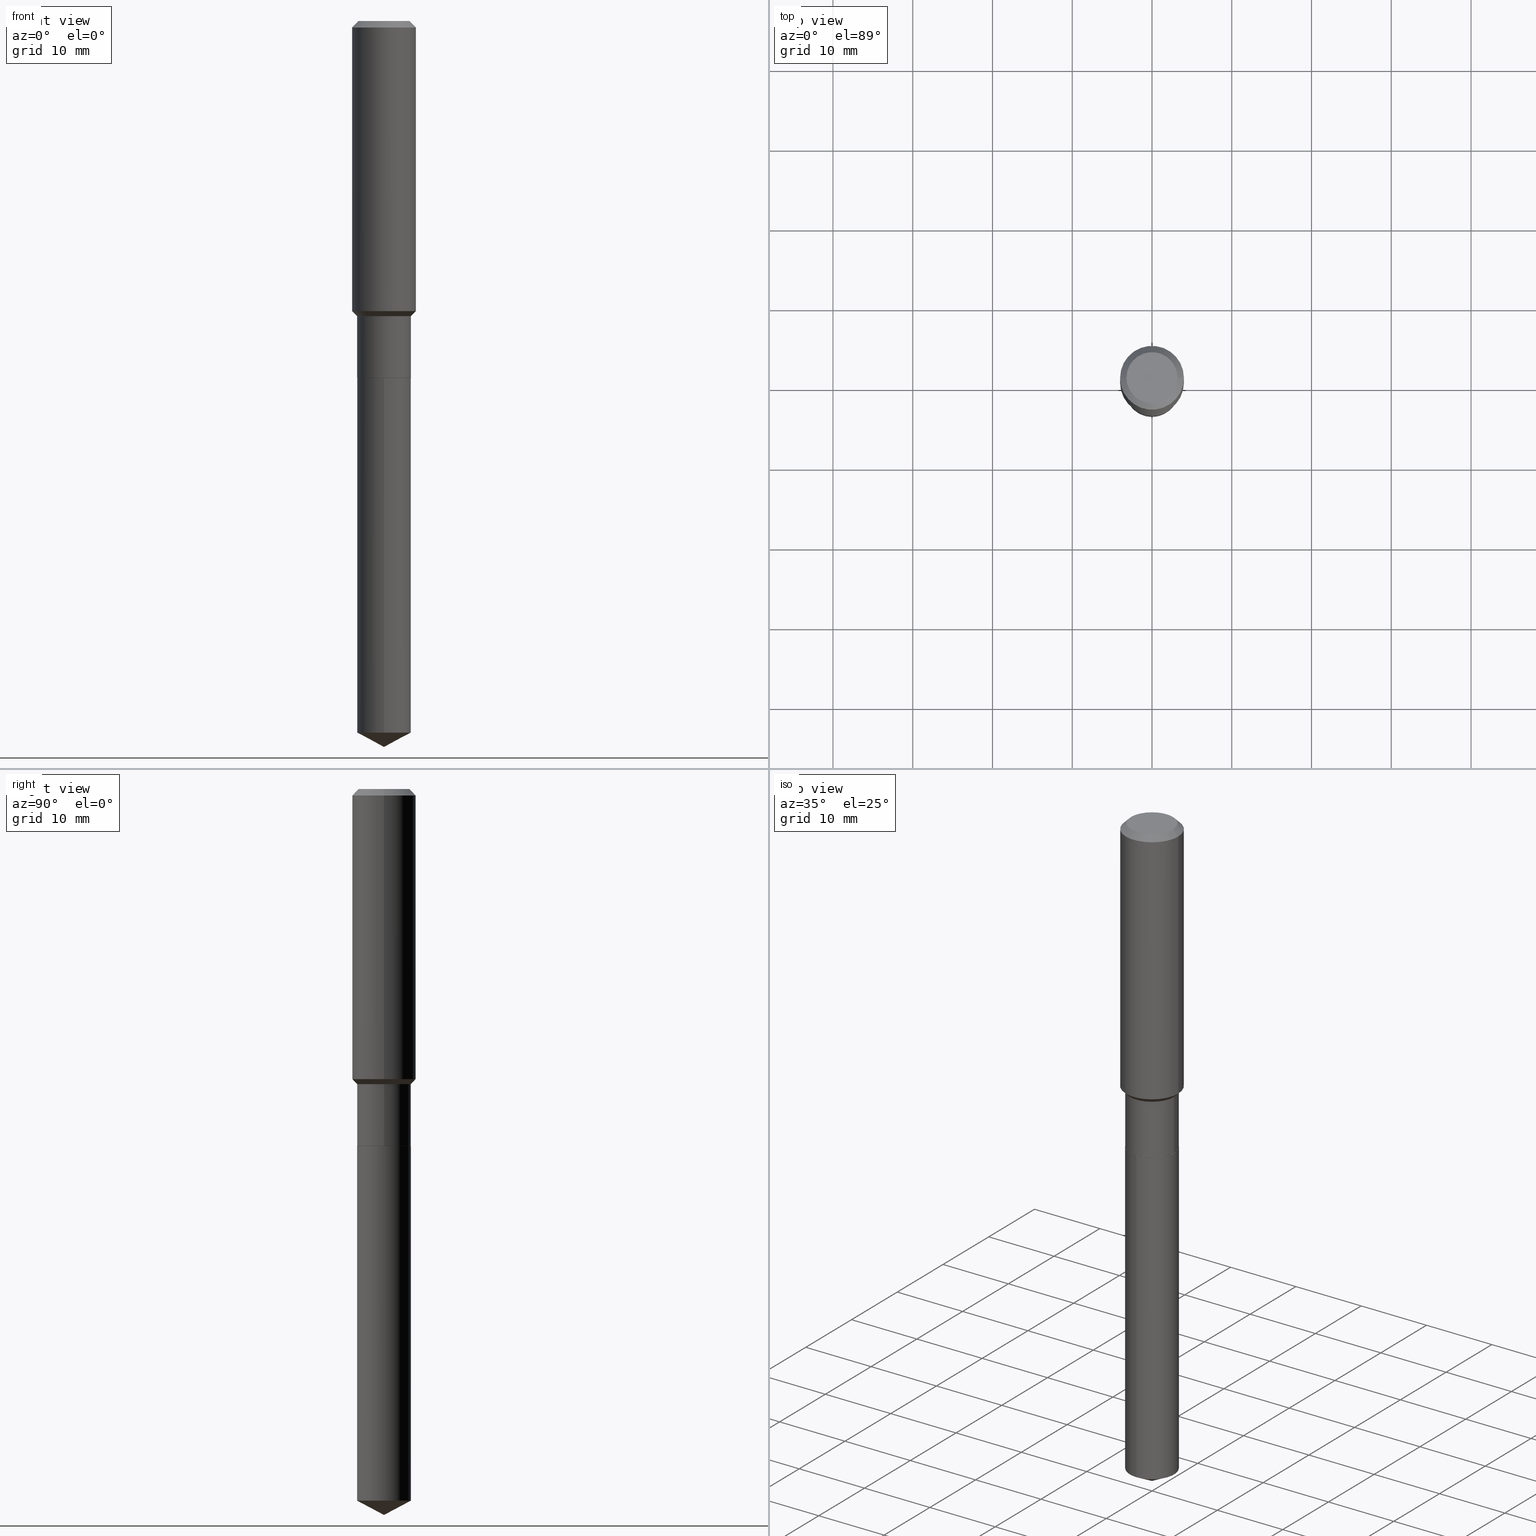
[diagram: canonical four-view strip — front | top / right | iso, engineering-drawing reading convention]
A machine part, canonical four-view strip (front | top / right | iso — engineering-drawing reading convention). The complete STEP part file that produces these views, byte-faithful:
ISO-10303-21;
HEADER;
FILE_DESCRIPTION (( 'STEP AP203' ),
    '1' );
FILE_NAME ('54812.STEP',
    '2024-04-24T15:52:31',
    ( '' ),
    ( '' ),
    'SwSTEP 2.0',
    'SolidWorks 2023',
    '' );
FILE_SCHEMA (( 'CONFIG_CONTROL_DESIGN' ));
ENDSEC;

DATA;
#1 = ORIENTED_EDGE ( 'NONE', *, *, #73, .F. ) ;
#2 = PRODUCT_DEFINITION_SHAPE ( 'NONE', 'NONE',  #238 ) ;
#3 = EDGE_LOOP ( 'NONE', ( #482, #392, #186 ) ) ;
#4 = ORIENTED_EDGE ( 'NONE', *, *, #234, .F. ) ;
#5 = CC_DESIGN_APPROVAL ( #214, ( #238 ) ) ;
#6 = CONICAL_SURFACE ( 'NONE', #197, 0.1327999999999999736, 0.7853981633974492782 ) ;
#7 = CARTESIAN_POINT ( 'NONE',  ( 3.500688596054023043E-29, -4.998055536553962721E-15, -1.431499999999999995 ) ) ;
#8 = CARTESIAN_POINT ( 'NONE',  ( 4.307937848975736097E-29, -6.150593526506084343E-15, -1.761599999999999833 ) ) ;
#9 = EDGE_CURVE ( 'NONE', #123, #133, #199, .T. ) ;
#10 = VECTOR ( 'NONE', #205, 39.37007874015748143 ) ;
#11 = FACE_OUTER_BOUND ( 'NONE', #383, .T. ) ;
#12 = ADVANCED_FACE ( 'NONE', ( #461 ), #120, .F. ) ;
#13 = DIRECTION ( 'NONE',  ( -2.445468806185136597E-29, 3.491481338843145583E-15, 1.000000000000000000 ) ) ;
#14 = AXIS2_PLACEMENT_3D ( 'NONE', #408, #33, #215 ) ;
#15 = DIRECTION ( 'NONE',  ( 1.000000000000000000, -6.982962677686265133E-15, 0.000000000000000000 ) ) ;
#16 = DIRECTION ( 'NONE',  ( 1.000000000000000000, -6.982962677686267499E-15, 0.000000000000000000 ) ) ;
#17 = DIRECTION ( 'NONE',  ( -2.445307825869915772E-29, 3.491711871816972429E-15, 1.000000000000000000 ) ) ;
#18 = ADVANCED_FACE ( 'NONE', ( #11 ), #63, .T. ) ;
#19 = DIRECTION ( 'NONE',  ( 1.000000000000000000, -6.982962677686266711E-15, 4.876176775795936353E-29 ) ) ;
#20 = ORIENTED_EDGE ( 'NONE', *, *, #251, .T. ) ;
#21 = LINE ( 'NONE', #125, #85 ) ;
#22 = AXIS2_PLACEMENT_3D ( 'NONE', #371, #189, #342 ) ;
#23 = ADVANCED_FACE ( 'NONE', ( #83 ), #6, .T. ) ;
#24 = AXIS2_PLACEMENT_3D ( 'NONE', #58, #326, #368 ) ;
#25 = APPROVAL_ROLE ( '' ) ;
#26 = DIRECTION ( 'NONE',  ( -2.445468806185136597E-29, 3.491481338843145583E-15, 1.000000000000000000 ) ) ;
#27 = DIRECTION ( 'NONE',  ( -2.445468806185136597E-29, 3.491481338843145583E-15, 1.000000000000000000 ) ) ;
#28 = ORIENTED_EDGE ( 'NONE', *, *, #111, .F. ) ;
#29 = PERSON_AND_ORGANIZATION_ROLE ( 'design_supplier' ) ;
#30 = LINE ( 'NONE', #341, #382 ) ;
#31 = VERTEX_POINT ( 'NONE', #345 ) ;
#32 = AXIS2_PLACEMENT_3D ( 'NONE', #69, #267, #104 ) ;
#33 = DIRECTION ( 'NONE',  ( 0.000000000000000000, 0.000000000000000000, 1.000000000000000000 ) ) ;
#34 = DIRECTION ( 'NONE',  ( 0.7071067811865451302, -7.319954787623248157E-15, -0.7071067811865499042 ) ) ;
#35 = ORIENTED_EDGE ( 'NONE', *, *, #316, .F. ) ;
#36 = EDGE_CURVE ( 'NONE', #333, #321, #40, .T. ) ;
#37 = CARTESIAN_POINT ( 'NONE',  ( -0.1328000000000000014, -4.672970702640613031E-15, -1.761099999999999888 ) ) ;
#38 = ORIENTED_EDGE ( 'NONE', *, *, #273, .T. ) ;
#39 = VECTOR ( 'NONE', #490, 39.37007874015748143 ) ;
#40 = CIRCLE ( 'NONE', #343, 0.1328000000000000014 ) ;
#41 = ORIENTED_EDGE ( 'NONE', *, *, #55, .F. ) ;
#42 = ADVANCED_FACE ( 'NONE', ( #44 ), #155, .T. ) ;
#43 = FACE_OUTER_BOUND ( 'NONE', #101, .T. ) ;
#44 = FACE_OUTER_BOUND ( 'NONE', #384, .T. ) ;
#45 = DIRECTION ( 'NONE',  ( 1.000000000000000000, -6.982962677686267499E-15, 0.000000000000000000 ) ) ;
#46 = AXIS2_PLACEMENT_3D ( 'NONE', #275, #277, #45 ) ;
#47 = CLOSED_SHELL ( 'NONE', ( #428, #328, #330, #23, #42, #131, #226, #396, #162, #266, #12, #432 ) ) ;
#48 = CARTESIAN_POINT ( 'NONE',  ( 4.306715114572644417E-29, -6.148847785836663628E-15, -1.761099999999999888 ) ) ;
#49 = AXIS2_PLACEMENT_3D ( 'NONE', #483, #258, #409 ) ;
#50 = CC_DESIGN_PERSON_AND_ORGANIZATION_ASSIGNMENT ( #441, #454, ( #475 ) ) ;
#51 = DIRECTION ( 'NONE',  ( -6.982962677686265133E-15, -1.000000000000000000, 4.114228906120878260E-15 ) ) ;
#52 = DIRECTION ( 'NONE',  ( -2.445307825869915772E-29, 3.491711871816972429E-15, 1.000000000000000000 ) ) ;
#53 = DIRECTION ( 'NONE',  ( 1.000000000000000000, -6.982962677686265133E-15, 0.000000000000000000 ) ) ;
#54 = CIRCLE ( 'NONE', #336, 0.1323000000000000009 ) ;
#55 = EDGE_CURVE ( 'NONE', #67, #123, #194, .T. ) ;
#56 = ORIENTED_EDGE ( 'NONE', *, *, #36, .F. ) ;
#57 = CONICAL_SURFACE ( 'NONE', #24, 0.1575000000000000011, 0.7853981633974449483 ) ;
#58 = CARTESIAN_POINT ( 'NONE',  ( 7.703226739483228723E-31, -1.099816621735597661E-16, -0.03150000000000019451 ) ) ;
#59 = CARTESIAN_POINT ( 'NONE',  ( -0.1575000000000000011, 9.898349595620272334E-16, -0.03150000000000019451 ) ) ;
#60 = ORIENTED_EDGE ( 'NONE', *, *, #124, .F. ) ;
#61 = CARTESIAN_POINT ( 'NONE',  ( -9.439721640706201686E-47, 1.347742071746726764E-32, 3.860086710912459732E-18 ) ) ;
#62 = CC_DESIGN_APPROVAL ( #86, ( #475 ) ) ;
#63 = CONICAL_SURFACE ( 'NONE', #157, 74.04434902938363905, 1.082104136236487157 ) ;
#64 = CC_DESIGN_DATE_AND_TIME_ASSIGNMENT ( #405, #485, ( #238 ) ) ;
#65 = COORDINATED_UNIVERSAL_TIME_OFFSET ( 5, 0, .BEHIND. ) ;
#66 = LINE ( 'NONE', #170, #314 ) ;
#67 = VERTEX_POINT ( 'NONE', #462 ) ;
#68 = APPROVAL_DATE_TIME ( #257, #489 ) ;
#69 = CARTESIAN_POINT ( 'NONE',  ( 7.703226739483228723E-31, -1.099816621735597661E-16, -0.03150000000000019451 ) ) ;
#70 = EDGE_LOOP ( 'NONE', ( #259, #416, #420, #407 ) ) ;
#71 = CALENDAR_DATE ( 2024, 24, 4 ) ;
#72 = DIRECTION ( 'NONE',  ( -2.445468806185136597E-29, 3.491481338843145583E-15, 1.000000000000000000 ) ) ;
#73 = EDGE_CURVE ( 'NONE', #231, #123, #175, .T. ) ;
#74 = CIRCLE ( 'NONE', #156, 0.1328000000000000014 ) ;
#75 = SHAPE_DEFINITION_REPRESENTATION ( #2, #134 ) ;
#76 = CARTESIAN_POINT ( 'NONE',  ( 0.1328000000000000014, -7.076185229433399456E-15, -1.761099999999999888 ) ) ;
#77 = VERTEX_POINT ( 'NONE', #464 ) ;
#78 = DIRECTION ( 'NONE',  ( 1.000000000000000000, -6.982962677686265922E-15, 0.000000000000000000 ) ) ;
#79 = ORIENTED_EDGE ( 'NONE', *, *, #310, .F. ) ;
#80 = AXIS2_PLACEMENT_3D ( 'NONE', #359, #132, #287 ) ;
#81 =( GEOMETRIC_REPRESENTATION_CONTEXT ( 3 ) GLOBAL_UNCERTAINTY_ASSIGNED_CONTEXT ( ( #435 ) ) GLOBAL_UNIT_ASSIGNED_CONTEXT ( ( #468, #161, #164 ) ) REPRESENTATION_CONTEXT ( 'NONE', 'WORKASPACE' ) );
#82 = EDGE_LOOP ( 'NONE', ( #318, #4 ) ) ;
#83 = FACE_OUTER_BOUND ( 'NONE', #309, .T. ) ;
#84 = DIRECTION ( 'NONE',  ( 6.982962677686265922E-15, 1.000000000000000000, -3.491711871816972429E-15 ) ) ;
#85 = VECTOR ( 'NONE', #358, 39.37007874015748854 ) ;
#86 = APPROVAL ( #144, 'UNSPECIFIED' ) ;
#87 = ORIENTED_EDGE ( 'NONE', *, *, #229, .F. ) ;
#88 = CYLINDRICAL_SURFACE ( 'NONE', #299, 0.1328000000000000014 ) ;
#89 = CARTESIAN_POINT ( 'NONE',  ( -9.273374435966502365E-16, -0.1328000000000122416, -3.512388987475355773 ) ) ;
#90 = DIRECTION ( 'NONE',  ( -2.438088387897960049E-29, 3.491481338843145188E-15, 1.000000000000000000 ) ) ;
#91 = ADVANCED_FACE ( 'NONE', ( #470 ), #320, .T. ) ;
#92 = FACE_OUTER_BOUND ( 'NONE', #477, .T. ) ;
#93 = CARTESIAN_POINT ( 'NONE',  ( -9.273374435966930322E-16, -0.1328000000000061354, -1.761599999999999389 ) ) ;
#94 = DESIGN_CONTEXT ( 'detailed design', #135, 'design' ) ;
#95 = DIRECTION ( 'NONE',  ( -2.445468806185136597E-29, 3.491481338843145583E-15, 1.000000000000000000 ) ) ;
#96 = EDGE_CURVE ( 'NONE', #77, #339, #315, .T. ) ;
#97 = CARTESIAN_POINT ( 'NONE',  ( 0.000000000000000000, 0.000000000000000000, 0.000000000000000000 ) ) ;
#98 = EDGE_LOOP ( 'NONE', ( #192, #268, #335, #87 ) ) ;
#99 = COORDINATED_UNIVERSAL_TIME_OFFSET ( 5, 0, .BEHIND. ) ;
#100 = CARTESIAN_POINT ( 'NONE',  ( 9.436007530894992397E-16, 0.1327999999999938674, -1.761600000000000499 ) ) ;
#101 = EDGE_LOOP ( 'NONE', ( #130, #369, #142, #488 ) ) ;
#102 = ADVANCED_FACE ( 'NONE', ( #430 ), #88, .T. ) ;
#103 = PERSON_AND_ORGANIZATION ( #270, #281 ) ;
#104 = DIRECTION ( 'NONE',  ( -1.000000000000000000, 6.982962677686265922E-15, 0.000000000000000000 ) ) ;
#105 = VERTEX_POINT ( 'NONE', #89 ) ;
#106 = DATE_TIME_ROLE ( 'classification_date' ) ;
#107 = DIRECTION ( 'NONE',  ( 1.000000000000000000, -6.982962677686267499E-15, 4.876176775795936353E-29 ) ) ;
#108 = ORIENTED_EDGE ( 'NONE', *, *, #316, .T. ) ;
#109 = APPROVAL_ROLE ( '' ) ;
#110 = DIRECTION ( 'NONE',  ( -6.982962677686265133E-15, -1.000000000000000000, 4.114228906120878260E-15 ) ) ;
#111 = EDGE_CURVE ( 'NONE', #376, #67, #357, .T. ) ;
#112 = EDGE_CURVE ( 'NONE', #269, #188, #121, .T. ) ;
#113 = CIRCLE ( 'NONE', #183, 0.1328000000000000014 ) ;
#114 = ORIENTED_EDGE ( 'NONE', *, *, #385, .F. ) ;
#115 = CARTESIAN_POINT ( 'NONE',  ( 0.000000000000000000, 0.000000000000000000, 0.000000000000000000 ) ) ;
#116 = CC_DESIGN_PERSON_AND_ORGANIZATION_ASSIGNMENT ( #479, #402, ( #238 ) ) ;
#117 = DIRECTION ( 'NONE',  ( -2.445468806185136877E-29, 3.491481338843145188E-15, 1.000000000000000000 ) ) ;
#118 = AXIS2_PLACEMENT_3D ( 'NONE', #254, #26, #437 ) ;
#119 = DIRECTION ( 'NONE',  ( 6.273719981627766865E-15, 0.8829475928589298750, 0.4694715627858851992 ) ) ;
#120 = PLANE ( 'NONE',  #167 ) ;
#121 = CIRCLE ( 'NONE', #422, 0.1260000000000000009 ) ;
#122 = FACE_OUTER_BOUND ( 'NONE', #210, .T. ) ;
#123 = VERTEX_POINT ( 'NONE', #245 ) ;
#124 = EDGE_CURVE ( 'NONE', #77, #105, #66, .T. ) ;
#125 = CARTESIAN_POINT ( 'NONE',  ( 0.1323000000000000009, -7.074439488763977163E-15, -1.761599999999999611 ) ) ;
#126 = EDGE_LOOP ( 'NONE', ( #230, #190, #154, #312 ) ) ;
#127 = APPROVAL_PERSON_ORGANIZATION ( #103, #86, #337 ) ;
#128 = CARTESIAN_POINT ( 'NONE',  ( -0.1323000000000000009, -5.210545487095471198E-15, -1.761599999999999611 ) ) ;
#129 = CLOSED_SHELL ( 'NONE', ( #191, #18, #91, #102, #444 ) ) ;
#130 = ORIENTED_EDGE ( 'NONE', *, *, #436, .T. ) ;
#131 = ADVANCED_FACE ( 'NONE', ( #250 ), #297, .T. ) ;
#132 = DIRECTION ( 'NONE',  ( -2.445307825869915772E-29, 3.491711871816972429E-15, 1.000000000000000000 ) ) ;
#133 = VERTEX_POINT ( 'NONE', #209 ) ;
#134 = ADVANCED_BREP_SHAPE_REPRESENTATION ( '54812', ( #249, #243, #14 ), #81 ) ;
#135 = APPLICATION_CONTEXT ( 'configuration controlled 3d designs of mechanical parts and assemblies' ) ;
#136 = PERSON_AND_ORGANIZATION ( #270, #281 ) ;
#137 = LINE ( 'NONE', #59, #324 ) ;
#138 = VERTEX_POINT ( 'NONE', #93 ) ;
#139 = DATE_AND_TIME ( #71, #235 ) ;
#140 = LOCAL_TIME ( 11, 52, 31.00000000000000000, #253 ) ;
#141 = DIRECTION ( 'NONE',  ( -2.445468806185136597E-29, 3.491481338843145583E-15, 1.000000000000000000 ) ) ;
#142 = ORIENTED_EDGE ( 'NONE', *, *, #293, .F. ) ;
#143 = VECTOR ( 'NONE', #117, 39.37007874015748143 ) ;
#144 = APPROVAL_STATUS ( 'not_yet_approved' ) ;
#145 = DIRECTION ( 'NONE',  ( 0.7071067811865482389, -2.468850131082264555E-15, 0.7071067811865467956 ) ) ;
#146 = PERSON_AND_ORGANIZATION ( #270, #281 ) ;
#147 = CARTESIAN_POINT ( 'NONE',  ( 0.000000000000000000, 0.000000000000000000, 0.000000000000000000 ) ) ;
#148 = ORIENTED_EDGE ( 'NONE', *, *, #206, .T. ) ;
#149 = COORDINATED_UNIVERSAL_TIME_OFFSET ( 5, 0, .BEHIND. ) ;
#150 = LINE ( 'NONE', #487, #152 ) ;
#151 = ORIENTED_EDGE ( 'NONE', *, *, #360, .F. ) ;
#152 = VECTOR ( 'NONE', #224, 39.37007874015748143 ) ;
#153 = EDGE_CURVE ( 'NONE', #188, #269, #177, .T. ) ;
#154 = ORIENTED_EDGE ( 'NONE', *, *, #185, .T. ) ;
#155 = CYLINDRICAL_SURFACE ( 'NONE', #391, 0.1327999999999999736 ) ;
#156 = AXIS2_PLACEMENT_3D ( 'NONE', #486, #451, #110 ) ;
#157 = AXIS2_PLACEMENT_3D ( 'NONE', #423, #355, #317 ) ;
#158 = CARTESIAN_POINT ( 'NONE',  ( -8.751014012540668707E-28, 1.249585738015433428E-13, 35.78707874015748303 ) ) ;
#159 = DIRECTION ( 'NONE',  ( -6.982962677686265133E-15, -1.000000000000000000, 4.114228906120878260E-15 ) ) ;
#160 = CARTESIAN_POINT ( 'NONE',  ( 6.847996289675660133E-29, -2.513085268275572980E-15, -1.761599999999999611 ) ) ;
#161 =( NAMED_UNIT ( * ) PLANE_ANGLE_UNIT ( ) SI_UNIT ( $, .RADIAN. ) );
#162 = ADVANCED_FACE ( 'NONE', ( #169 ), #57, .T. ) ;
#163 = DIRECTION ( 'NONE',  ( -2.445468806185136597E-29, 3.491481338843145583E-15, 1.000000000000000000 ) ) ;
#164 =( NAMED_UNIT ( * ) SI_UNIT ( $, .STERADIAN. ) SOLID_ANGLE_UNIT ( ) );
#165 = AXIS2_PLACEMENT_3D ( 'NONE', #115, #195, #202 ) ;
#166 = AXIS2_PLACEMENT_3D ( 'NONE', #434, #17, #289 ) ;
#167 = AXIS2_PLACEMENT_3D ( 'NONE', #160, #90, #201 ) ;
#168 = DIRECTION ( 'NONE',  ( 1.000000000000000000, -6.982962677686267499E-15, 0.000000000000000000 ) ) ;
#169 = FACE_OUTER_BOUND ( 'NONE', #70, .T. ) ;
#170 = CARTESIAN_POINT ( 'NONE',  ( 8.761537940091907830E-29, -1.251080363672021200E-14, -3.583000000000000185 ) ) ;
#171 = ORIENTED_EDGE ( 'NONE', *, *, #234, .T. ) ;
#172 = EDGE_CURVE ( 'NONE', #272, #333, #246, .T. ) ;
#173 = AXIS2_PLACEMENT_3D ( 'NONE', #471, #322, #237 ) ;
#174 = CARTESIAN_POINT ( 'NONE',  ( -0.1260000000000000009, 9.348441284752484904E-16, 3.860086710906114178E-18 ) ) ;
#175 = CIRCLE ( 'NONE', #458, 0.1575000000000001676 ) ;
#176 = ORIENTED_EDGE ( 'NONE', *, *, #481, .T. ) ;
#177 = CIRCLE ( 'NONE', #448, 0.1260000000000000009 ) ;
#178 = CARTESIAN_POINT ( 'NONE',  ( 3.561091675566796113E-29, -5.084295125623389731E-15, -1.456200000000000161 ) ) ;
#179 = ORIENTED_EDGE ( 'NONE', *, *, #310, .T. ) ;
#180 = FACE_OUTER_BOUND ( 'NONE', #372, .T. ) ;
#181 = ORIENTED_EDGE ( 'NONE', *, *, #340, .F. ) ;
#182 = DATE_AND_TIME ( #223, #264 ) ;
#183 = AXIS2_PLACEMENT_3D ( 'NONE', #8, #52, #159 ) ;
#184 = LINE ( 'NONE', #304, #39 ) ;
#185 = EDGE_CURVE ( 'NONE', #321, #376, #474, .T. ) ;
#186 = ORIENTED_EDGE ( 'NONE', *, *, #251, .F. ) ;
#187 = DIRECTION ( 'NONE',  ( 1.000000000000000000, -6.982962677686263555E-15, 0.000000000000000000 ) ) ;
#188 = VERTEX_POINT ( 'NONE', #174 ) ;
#189 = DIRECTION ( 'NONE',  ( -2.445468806185136597E-29, 3.491481338843145583E-15, 1.000000000000000000 ) ) ;
#190 = ORIENTED_EDGE ( 'NONE', *, *, #36, .T. ) ;
#191 = ADVANCED_FACE ( 'NONE', ( #329 ), #204, .T. ) ;
#192 = ORIENTED_EDGE ( 'NONE', *, *, #112, .F. ) ;
#193 = CARTESIAN_POINT ( 'NONE',  ( 4.307937848975735537E-29, -6.150593526506083554E-15, -1.761599999999999611 ) ) ;
#194 = LINE ( 'NONE', #233, #221 ) ;
#195 = DIRECTION ( 'NONE',  ( -2.445468806185136597E-29, 3.491481338843145583E-15, 1.000000000000000000 ) ) ;
#196 = VECTOR ( 'NONE', #34, 39.37007874015748143 ) ;
#197 = AXIS2_PLACEMENT_3D ( 'NONE', #389, #13, #15 ) ;
#198 = DIRECTION ( 'NONE',  ( -2.445468806185136597E-29, 3.491481338843145583E-15, 1.000000000000000000 ) ) ;
#199 = LINE ( 'NONE', #354, #143 ) ;
#200 = EDGE_CURVE ( 'NONE', #67, #376, #394, .T. ) ;
#201 = DIRECTION ( 'NONE',  ( 1.000000000000000000, -6.982962677686265922E-15, 4.876176775795935793E-29 ) ) ;
#202 = DIRECTION ( 'NONE',  ( 1.000000000000000000, -6.982962677686267499E-15, 4.876176775795936353E-29 ) ) ;
#203 = AXIS2_PLACEMENT_3D ( 'NONE', #411, #417, #78 ) ;
#204 = CYLINDRICAL_SURFACE ( 'NONE', #80, 0.1328000000000000014 ) ;
#205 = DIRECTION ( 'NONE',  ( -2.445468806185136877E-29, 3.491481338843145188E-15, 1.000000000000000000 ) ) ;
#206 = EDGE_CURVE ( 'NONE', #397, #321, #21, .T. ) ;
#207 = CARTESIAN_POINT ( 'NONE',  ( 4.307937848975735537E-29, -6.150593526506083554E-15, -1.761599999999999611 ) ) ;
#208 = CC_DESIGN_SECURITY_CLASSIFICATION ( #475, ( #242 ) ) ;
#209 = CARTESIAN_POINT ( 'NONE',  ( -0.1575000000000000011, -1.434913790541602697E-15, -0.03150000000000019451 ) ) ;
#210 = EDGE_LOOP ( 'NONE', ( #425, #404 ) ) ;
#211 = COORDINATED_UNIVERSAL_TIME_OFFSET ( 5, 0, .BEHIND. ) ;
#212 = CARTESIAN_POINT ( 'NONE',  ( -0.1323000000000000009, -5.207896259921361575E-15, -1.761599999999999611 ) ) ;
#213 = EDGE_LOOP ( 'NONE', ( #35, #20, #379, #438 ) ) ;
#214 = APPROVAL ( #331, 'UNSPECIFIED' ) ;
#215 = DIRECTION ( 'NONE',  ( 1.000000000000000000, 0.000000000000000000, 0.000000000000000000 ) ) ;
#216 = CYLINDRICAL_SURFACE ( 'NONE', #419, 0.1575000000000000844 ) ;
#217 = ORIENTED_EDGE ( 'NONE', *, *, #153, .T. ) ;
#218 = DATE_AND_TIME ( #300, #413 ) ;
#219 = CONICAL_SURFACE ( 'NONE', #173, 0.1323000000000000009, 0.7853981633978239785 ) ;
#220 = FACE_OUTER_BOUND ( 'NONE', #460, .T. ) ;
#221 = VECTOR ( 'NONE', #427, 39.37007874015748143 ) ;
#222 = VECTOR ( 'NONE', #472, 39.37007874015748854 ) ;
#223 = CALENDAR_DATE ( 2024, 24, 4 ) ;
#224 = DIRECTION ( 'NONE',  ( -2.445307825869916052E-29, 3.491711871816972429E-15, 1.000000000000000000 ) ) ;
#225 = ORIENTED_EDGE ( 'NONE', *, *, #9, .F. ) ;
#226 = ADVANCED_FACE ( 'NONE', ( #180 ), #325, .T. ) ;
#227 = FACE_OUTER_BOUND ( 'NONE', #290, .T. ) ;
#228 = ORIENTED_EDGE ( 'NONE', *, *, #55, .T. ) ;
#229 = EDGE_CURVE ( 'NONE', #188, #133, #137, .T. ) ;
#230 = ORIENTED_EDGE ( 'NONE', *, *, #481, .F. ) ;
#231 = VERTEX_POINT ( 'NONE', #334 ) ;
#232 = LINE ( 'NONE', #387, #445 ) ;
#233 = CARTESIAN_POINT ( 'NONE',  ( -0.1327999999999999736, -4.140694372533976477E-15, -1.456200000000000161 ) ) ;
#234 = EDGE_CURVE ( 'NONE', #272, #397, #433, .T. ) ;
#235 = LOCAL_TIME ( 11, 52, 31.00000000000000000, #99 ) ;
#236 = DIRECTION ( 'NONE',  ( -2.445307825869915772E-29, 3.491711871816972429E-15, 1.000000000000000000 ) ) ;
#237 = DIRECTION ( 'NONE',  ( 1.000000000000000000, -6.982962677686267499E-15, 0.000000000000000000 ) ) ;
#238 = PRODUCT_DEFINITION ( 'UNKNOWN', '', #242, #94 ) ;
#239 = CARTESIAN_POINT ( 'NONE',  ( 3.561091675566796113E-29, -5.084295125623389731E-15, -1.456200000000000161 ) ) ;
#240 = CYLINDRICAL_SURFACE ( 'NONE', #165, 0.1575000000000000844 ) ;
#241 = ORIENTED_EDGE ( 'NONE', *, *, #111, .T. ) ;
#242 = PRODUCT_DEFINITION_FORMATION_WITH_SPECIFIED_SOURCE ( 'ANY', '', #453, .NOT_KNOWN. ) ;
#243 = MANIFOLD_SOLID_BREP ( 'Body-Move/Copy2[2]', #47 ) ;
#244 = CC_DESIGN_PERSON_AND_ORGANIZATION_ASSIGNMENT ( #410, #365, ( #453 ) ) ;
#245 = CARTESIAN_POINT ( 'NONE',  ( -0.1575000000000001676, -3.878950727731804329E-15, -1.431499999999999995 ) ) ;
#246 = LINE ( 'NONE', #128, #222 ) ;
#247 = ORIENTED_EDGE ( 'NONE', *, *, #73, .T. ) ;
#248 = APPLICATION_CONTEXT ( 'configuration controlled 3d designs of mechanical parts and assemblies' ) ;
#249 = MANIFOLD_SOLID_BREP ( 'Body-Move/Copy2[1]', #129 ) ;
#250 = FACE_OUTER_BOUND ( 'NONE', #126, .T. ) ;
#251 = EDGE_CURVE ( 'NONE', #339, #105, #476, .T. ) ;
#252 = AXIS2_PLACEMENT_3D ( 'NONE', #424, #346, #84 ) ;
#253 = COORDINATED_UNIVERSAL_TIME_OFFSET ( 5, 0, .BEHIND. ) ;
#254 = CARTESIAN_POINT ( 'NONE',  ( 3.561091675566796113E-29, -5.084295125623389731E-15, -1.456200000000000161 ) ) ;
#255 = VERTEX_POINT ( 'NONE', #100 ) ;
#256 = AXIS2_PLACEMENT_3D ( 'NONE', #440, #447, #406 ) ;
#257 = DATE_AND_TIME ( #303, #347 ) ;
#258 = DIRECTION ( 'NONE',  ( -2.445307825869915772E-29, 3.491711871816972429E-15, 1.000000000000000000 ) ) ;
#259 = ORIENTED_EDGE ( 'NONE', *, *, #278, .F. ) ;
#260 = APPROVAL_DATE_TIME ( #218, #86 ) ;
#261 = CARTESIAN_POINT ( 'NONE',  ( 0.1327999999999999736, -6.011632569220125559E-15, -1.456200000000000161 ) ) ;
#262 = AXIS2_PLACEMENT_3D ( 'NONE', #178, #400, #332 ) ;
#263 = APPLICATION_PROTOCOL_DEFINITION ( 'international standard', 'config_control_design', 1994, #248 ) ;
#264 = LOCAL_TIME ( 11, 52, 31.00000000000000000, #211 ) ;
#265 = DIRECTION ( 'NONE',  ( -2.445468806185136597E-29, 3.491481338843145583E-15, 1.000000000000000000 ) ) ;
#266 = ADVANCED_FACE ( 'NONE', ( #92 ), #361, .F. ) ;
#267 = DIRECTION ( 'NONE',  ( 2.445468806185136597E-29, -3.491481338843145583E-15, -1.000000000000000000 ) ) ;
#268 = ORIENTED_EDGE ( 'NONE', *, *, #278, .T. ) ;
#269 = VERTEX_POINT ( 'NONE', #442 ) ;
#270 = PERSON ( 'UNSPECIFIED', 'UNSPECIFIED', 'UNSPECIFIED', ('UNSPECIFIED'), ('UNSPECIFIED'), ('UNSPECIFIED') ) ;
#271 = CONICAL_SURFACE ( 'NONE', #46, 0.1323000000000000009, 0.7853981633978239785 ) ;
#272 = VERTEX_POINT ( 'NONE', #212 ) ;
#273 = EDGE_CURVE ( 'NONE', #105, #339, #313, .T. ) ;
#274 = CARTESIAN_POINT ( 'NONE',  ( 0.000000000000000000, 0.000000000000000000, 0.000000000000000000 ) ) ;
#275 = CARTESIAN_POINT ( 'NONE',  ( 4.307937848975735537E-29, -6.150593526506083554E-15, -1.761599999999999611 ) ) ;
#276 = CARTESIAN_POINT ( 'NONE',  ( 8.762110079313482618E-29, -1.250999142294682474E-14, -3.583000000000000185 ) ) ;
#277 = DIRECTION ( 'NONE',  ( -2.445468806185136597E-29, 3.491481338843145583E-15, 1.000000000000000000 ) ) ;
#278 = EDGE_CURVE ( 'NONE', #269, #31, #415, .T. ) ;
#279 = DIRECTION ( 'NONE',  ( 1.000000000000000000, -6.982962677686266711E-15, 4.876176775795936353E-29 ) ) ;
#280 = CARTESIAN_POINT ( 'NONE',  ( 0.1323000000000000009, -7.074439488763977163E-15, -1.761599999999999611 ) ) ;
#281 = ORGANIZATION ( 'UNSPECIFIED', 'UNSPECIFIED', '' ) ;
#282 = DIRECTION ( 'NONE',  ( -2.445307825869915772E-29, 3.491711871816972429E-15, 1.000000000000000000 ) ) ;
#283 = CARTESIAN_POINT ( 'NONE',  ( 4.307937848975736097E-29, -6.150593526506084343E-15, -1.761599999999999833 ) ) ;
#284 = LINE ( 'NONE', #465, #311 ) ;
#285 = DIRECTION ( 'NONE',  ( -6.165590087286836818E-15, -0.8829475928589266553, 0.4694715627858914164 ) ) ;
#286 = APPROVAL_PERSON_ORGANIZATION ( #146, #489, #109 ) ;
#287 = DIRECTION ( 'NONE',  ( -6.982962677686265133E-15, -1.000000000000000000, 4.114228906120878260E-15 ) ) ;
#288 = ORIENTED_EDGE ( 'NONE', *, *, #9, .T. ) ;
#289 = DIRECTION ( 'NONE',  ( -6.982962677686265133E-15, -1.000000000000000000, 4.114228906120878260E-15 ) ) ;
#290 = EDGE_LOOP ( 'NONE', ( #225, #367, #412, #151 ) ) ;
#291 = PERSON_AND_ORGANIZATION_ROLE ( 'creator' ) ;
#292 = DIRECTION ( 'NONE',  ( 1.000000000000000000, -6.982962677686267499E-15, 0.000000000000000000 ) ) ;
#293 = EDGE_CURVE ( 'NONE', #321, #333, #327, .T. ) ;
#294 = APPROVAL_PERSON_ORGANIZATION ( #370, #214, #25 ) ;
#295 = CC_DESIGN_APPROVAL ( #489, ( #242 ) ) ;
#296 = CALENDAR_DATE ( 2024, 24, 4 ) ;
#297 = CYLINDRICAL_SURFACE ( 'NONE', #469, 0.1327999999999999736 ) ;
#298 = ORIENTED_EDGE ( 'NONE', *, *, #200, .T. ) ;
#299 = AXIS2_PLACEMENT_3D ( 'NONE', #283, #236, #51 ) ;
#300 = CALENDAR_DATE ( 2024, 24, 4 ) ;
#301 = DIRECTION ( 'NONE',  ( -2.445468806185136597E-29, 3.491481338843145583E-15, 1.000000000000000000 ) ) ;
#302 = ORIENTED_EDGE ( 'NONE', *, *, #112, .T. ) ;
#303 = CALENDAR_DATE ( 2024, 24, 4 ) ;
#304 = CARTESIAN_POINT ( 'NONE',  ( 0.1575000000000000844, -1.099816621735587677E-15, 7.679978421878603638E-30 ) ) ;
#305 = SECURITY_CLASSIFICATION_LEVEL ( 'unclassified' ) ;
#306 = CIRCLE ( 'NONE', #388, 0.1575000000000000011 ) ;
#307 = DIRECTION ( 'NONE',  ( 1.000000000000000000, -6.982962677686265922E-15, 0.000000000000000000 ) ) ;
#308 = ORIENTED_EDGE ( 'NONE', *, *, #96, .T. ) ;
#309 = EDGE_LOOP ( 'NONE', ( #241, #228, #1, #79 ) ) ;
#310 = EDGE_CURVE ( 'NONE', #376, #231, #30, .T. ) ;
#311 = VECTOR ( 'NONE', #439, 39.37007874015748143 ) ;
#312 = ORIENTED_EDGE ( 'NONE', *, *, #200, .F. ) ;
#313 = CIRCLE ( 'NONE', #49, 0.1328000000000000014 ) ;
#314 = VECTOR ( 'NONE', #285, 39.37007874015748854 ) ;
#315 = LINE ( 'NONE', #276, #364 ) ;
#316 = EDGE_CURVE ( 'NONE', #339, #255, #150, .T. ) ;
#317 = DIRECTION ( 'NONE',  ( -6.982962677686267499E-15, -1.000000000000000000, 3.541896320645556136E-15 ) ) ;
#318 = ORIENTED_EDGE ( 'NONE', *, *, #436, .F. ) ;
#319 = CIRCLE ( 'NONE', #203, 0.1575000000000000011 ) ;
#320 = CONICAL_SURFACE ( 'NONE', #429, 74.04434902938363905, 1.082104136236487157 ) ;
#321 = VERTEX_POINT ( 'NONE', #76 ) ;
#322 = DIRECTION ( 'NONE',  ( -2.445468806185136597E-29, 3.491481338843145583E-15, 1.000000000000000000 ) ) ;
#323 = DIRECTION ( 'NONE',  ( -2.445468806185136597E-29, 3.491481338843145583E-15, 1.000000000000000000 ) ) ;
#324 = VECTOR ( 'NONE', #478, 39.37007874015748143 ) ;
#325 = CONICAL_SURFACE ( 'NONE', #262, 0.1327999999999999736, 0.7853981633974492782 ) ;
#326 = DIRECTION ( 'NONE',  ( 2.445468806185136597E-29, -3.491481338843145583E-15, -1.000000000000000000 ) ) ;
#327 = CIRCLE ( 'NONE', #398, 0.1328000000000000014 ) ;
#328 = ADVANCED_FACE ( 'NONE', ( #378 ), #356, .T. ) ;
#329 = FACE_OUTER_BOUND ( 'NONE', #362, .T. ) ;
#330 = ADVANCED_FACE ( 'NONE', ( #220 ), #216, .T. ) ;
#331 = APPROVAL_STATUS ( 'not_yet_approved' ) ;
#332 = DIRECTION ( 'NONE',  ( 1.000000000000000000, -6.982962677686265133E-15, 0.000000000000000000 ) ) ;
#333 = VERTEX_POINT ( 'NONE', #37 ) ;
#334 = CARTESIAN_POINT ( 'NONE',  ( 0.1575000000000001676, -6.097872158289550991E-15, -1.431499999999999995 ) ) ;
#335 = ORIENTED_EDGE ( 'NONE', *, *, #385, .T. ) ;
#336 = AXIS2_PLACEMENT_3D ( 'NONE', #193, #393, #16 ) ;
#337 = APPROVAL_ROLE ( '' ) ;
#338 = CARTESIAN_POINT ( 'NONE',  ( 9.436007530894986480E-16, 0.1327999999999877334, -3.512388987475356661 ) ) ;
#339 = VERTEX_POINT ( 'NONE', #338 ) ;
#340 = EDGE_CURVE ( 'NONE', #123, #231, #373, .T. ) ;
#341 = CARTESIAN_POINT ( 'NONE',  ( 0.1327999999999999736, -6.011632569220125559E-15, -1.456200000000000161 ) ) ;
#342 = DIRECTION ( 'NONE',  ( 1.000000000000000000, -6.982962677686267499E-15, 0.000000000000000000 ) ) ;
#343 = AXIS2_PLACEMENT_3D ( 'NONE', #48, #198, #386 ) ;
#344 = AXIS2_PLACEMENT_3D ( 'NONE', #239, #395, #53 ) ;
#345 = CARTESIAN_POINT ( 'NONE',  ( 0.1575000000000000011, -1.209798283909146741E-15, -0.03150000000000019451 ) ) ;
#346 = DIRECTION ( 'NONE',  ( 2.445307825869915492E-29, -3.491711871816972429E-15, -1.000000000000000000 ) ) ;
#347 = LOCAL_TIME ( 11, 52, 31.00000000000000000, #65 ) ;
#348 = ORIENTED_EDGE ( 'NONE', *, *, #172, .F. ) ;
#349 = AXIS2_PLACEMENT_3D ( 'NONE', #207, #27, #292 ) ;
#350 = DIRECTION ( 'NONE',  ( -2.445468806185136877E-29, 3.491481338843145188E-15, 1.000000000000000000 ) ) ;
#351 = EDGE_CURVE ( 'NONE', #231, #31, #184, .T. ) ;
#352 = DIRECTION ( 'NONE',  ( -2.445468806185136597E-29, 3.491481338843145583E-15, 1.000000000000000000 ) ) ;
#353 = LENGTH_MEASURE_WITH_UNIT ( LENGTH_MEASURE( 0.02539999999999999897 ), #390 );
#354 = CARTESIAN_POINT ( 'NONE',  ( -0.1575000000000000844, 1.119104808822158392E-15, -7.747322767151481189E-30 ) ) ;
#355 = DIRECTION ( 'NONE',  ( -2.445307825869915772E-29, 3.491711871816972429E-15, 1.000000000000000000 ) ) ;
#356 = CONICAL_SURFACE ( 'NONE', #32, 0.1575000000000000011, 0.7853981633974449483 ) ;
#357 = CIRCLE ( 'NONE', #344, 0.1327999999999999736 ) ;
#358 = DIRECTION ( 'NONE',  ( 0.7071067811868130271, -2.468850131085038979E-15, 0.7071067811862817853 ) ) ;
#359 = CARTESIAN_POINT ( 'NONE',  ( 4.307937848975736097E-29, -6.150593526506084343E-15, -1.761599999999999833 ) ) ;
#360 = EDGE_CURVE ( 'NONE', #133, #31, #306, .T. ) ;
#361 = PLANE ( 'NONE',  #256 ) ;
#362 = EDGE_LOOP ( 'NONE', ( #38, #108, #443, #401 ) ) ;
#363 = EDGE_CURVE ( 'NONE', #255, #138, #74, .T. ) ;
#364 = VECTOR ( 'NONE', #119, 39.37007874015748143 ) ;
#365 = PERSON_AND_ORGANIZATION_ROLE ( 'design_owner' ) ;
#366 = CARTESIAN_POINT ( 'NONE',  ( 0.1327999999999999736, -9.273374435967360251E-16, 6.475562758257002307E-30 ) ) ;
#367 = ORIENTED_EDGE ( 'NONE', *, *, #340, .T. ) ;
#368 = DIRECTION ( 'NONE',  ( -1.000000000000000000, 6.982962677686265922E-15, 0.000000000000000000 ) ) ;
#369 = ORIENTED_EDGE ( 'NONE', *, *, #172, .T. ) ;
#370 = PERSON_AND_ORGANIZATION ( #270, #281 ) ;
#371 = CARTESIAN_POINT ( 'NONE',  ( 3.500688596054023043E-29, -4.998055536553962721E-15, -1.431499999999999995 ) ) ;
#372 = EDGE_LOOP ( 'NONE', ( #41, #298, #179, #181 ) ) ;
#373 = CIRCLE ( 'NONE', #22, 0.1575000000000001676 ) ;
#374 = MECHANICAL_CONTEXT ( 'NONE', #248, 'mechanical' ) ;
#375 = CARTESIAN_POINT ( 'NONE',  ( 0.1575000000000000011, -1.190510096822576026E-15, -0.03150000000000019451 ) ) ;
#376 = VERTEX_POINT ( 'NONE', #261 ) ;
#377 = PERSON_AND_ORGANIZATION ( #270, #281 ) ;
#378 = FACE_OUTER_BOUND ( 'NONE', #98, .T. ) ;
#379 = ORIENTED_EDGE ( 'NONE', *, *, #418, .T. ) ;
#380 = ORIENTED_EDGE ( 'NONE', *, *, #351, .F. ) ;
#381 = PRODUCT_RELATED_PRODUCT_CATEGORY ( 'detail', '', ( #453 ) ) ;
#382 = VECTOR ( 'NONE', #145, 39.37007874015748143 ) ;
#383 = EDGE_LOOP ( 'NONE', ( #60, #308, #459 ) ) ;
#384 = EDGE_LOOP ( 'NONE', ( #467, #176, #28, #452 ) ) ;
#385 = EDGE_CURVE ( 'NONE', #31, #133, #319, .T. ) ;
#386 = DIRECTION ( 'NONE',  ( 1.000000000000000000, -6.982962677686263555E-15, 0.000000000000000000 ) ) ;
#387 = CARTESIAN_POINT ( 'NONE',  ( -0.1327999999999999736, 9.436007530894128594E-16, -6.532345799858513932E-30 ) ) ;
#388 = AXIS2_PLACEMENT_3D ( 'NONE', #455, #72, #307 ) ;
#389 = CARTESIAN_POINT ( 'NONE',  ( 3.561091675566796113E-29, -5.084295125623389731E-15, -1.456200000000000161 ) ) ;
#390 =( LENGTH_UNIT ( ) NAMED_UNIT ( * ) SI_UNIT ( $, .METRE. ) );
#391 = AXIS2_PLACEMENT_3D ( 'NONE', #274, #163, #279 ) ;
#392 = ORIENTED_EDGE ( 'NONE', *, *, #124, .T. ) ;
#393 = DIRECTION ( 'NONE',  ( -2.445468806185136597E-29, 3.491481338843145583E-15, 1.000000000000000000 ) ) ;
#394 = CIRCLE ( 'NONE', #118, 0.1327999999999999736 ) ;
#395 = DIRECTION ( 'NONE',  ( -2.445468806185136597E-29, 3.491481338843145583E-15, 1.000000000000000000 ) ) ;
#396 = ADVANCED_FACE ( 'NONE', ( #227 ), #240, .T. ) ;
#397 = VERTEX_POINT ( 'NONE', #280 ) ;
#398 = AXIS2_PLACEMENT_3D ( 'NONE', #457, #265, #187 ) ;
#399 = CARTESIAN_POINT ( 'NONE',  ( -9.439721640706201686E-47, 1.347742071746726764E-32, 3.860086710912459732E-18 ) ) ;
#400 = DIRECTION ( 'NONE',  ( -2.445468806185136597E-29, 3.491481338843145583E-15, 1.000000000000000000 ) ) ;
#401 = ORIENTED_EDGE ( 'NONE', *, *, #418, .F. ) ;
#402 = PERSON_AND_ORGANIZATION_ROLE ( 'creator' ) ;
#403 = DIRECTION ( 'NONE',  ( 1.000000000000000000, -6.982962677686265922E-15, 4.876281427513067258E-29 ) ) ;
#404 = ORIENTED_EDGE ( 'NONE', *, *, #363, .T. ) ;
#405 = DATE_AND_TIME ( #296, #140 ) ;
#406 = DIRECTION ( 'NONE',  ( -1.000000000000000000, 6.982962677686265922E-15, -4.876176775795935793E-29 ) ) ;
#407 = ORIENTED_EDGE ( 'NONE', *, *, #360, .T. ) ;
#408 = CARTESIAN_POINT ( 'NONE',  ( 0.000000000000000000, 0.000000000000000000, 0.000000000000000000 ) ) ;
#409 = DIRECTION ( 'NONE',  ( -6.982962677686265133E-15, -1.000000000000000000, 4.114228906120878260E-15 ) ) ;
#410 = PERSON_AND_ORGANIZATION ( #270, #281 ) ;
#411 = CARTESIAN_POINT ( 'NONE',  ( 7.703226739483228723E-31, -1.099816621735597661E-16, -0.03150000000000019451 ) ) ;
#412 = ORIENTED_EDGE ( 'NONE', *, *, #351, .T. ) ;
#413 = LOCAL_TIME ( 11, 52, 31.00000000000000000, #149 ) ;
#414 = APPROVAL_DATE_TIME ( #139, #214 ) ;
#415 = LINE ( 'NONE', #375, #196 ) ;
#416 = ORIENTED_EDGE ( 'NONE', *, *, #153, .F. ) ;
#417 = DIRECTION ( 'NONE',  ( -2.445468806185136597E-29, 3.491481338843145583E-15, 1.000000000000000000 ) ) ;
#418 = EDGE_CURVE ( 'NONE', #105, #138, #284, .T. ) ;
#419 = AXIS2_PLACEMENT_3D ( 'NONE', #147, #301, #107 ) ;
#420 = ORIENTED_EDGE ( 'NONE', *, *, #229, .T. ) ;
#421 = DIMENSIONAL_EXPONENTS ( 1.000000000000000000, 0.000000000000000000, 0.000000000000000000, 0.000000000000000000, 0.000000000000000000, 0.000000000000000000, 0.000000000000000000 ) ;
#422 = AXIS2_PLACEMENT_3D ( 'NONE', #399, #95, #480 ) ;
#423 = CARTESIAN_POINT ( 'NONE',  ( -8.751014012540668707E-28, 1.249585738015433428E-13, 35.78707874015748303 ) ) ;
#424 = CARTESIAN_POINT ( 'NONE',  ( 4.307937848975736097E-29, -6.150593526506084343E-15, -1.761599999999999833 ) ) ;
#425 = ORIENTED_EDGE ( 'NONE', *, *, #484, .T. ) ;
#426 = PLANE ( 'NONE',  #252 ) ;
#427 = DIRECTION ( 'NONE',  ( -0.7071067811865482389, 7.493145998870357316E-15, 0.7071067811865467956 ) ) ;
#428 = ADVANCED_FACE ( 'NONE', ( #43 ), #271, .T. ) ;
#429 = AXIS2_PLACEMENT_3D ( 'NONE', #158, #282, #431 ) ;
#430 = FACE_OUTER_BOUND ( 'NONE', #213, .T. ) ;
#431 = DIRECTION ( 'NONE',  ( -6.982962677686267499E-15, -1.000000000000000000, 3.541896320645556136E-15 ) ) ;
#432 = ADVANCED_FACE ( 'NONE', ( #463 ), #219, .T. ) ;
#433 = CIRCLE ( 'NONE', #349, 0.1323000000000000009 ) ;
#434 = CARTESIAN_POINT ( 'NONE',  ( 8.589155861496090582E-29, -1.226384421912020250E-14, -3.512388987475356217 ) ) ;
#435 = UNCERTAINTY_MEASURE_WITH_UNIT (LENGTH_MEASURE( 1.000000000000000082E-05 ), #468, 'distance_accuracy_value', 'NONE');
#436 = EDGE_CURVE ( 'NONE', #397, #272, #54, .T. ) ;
#437 = DIRECTION ( 'NONE',  ( 1.000000000000000000, -6.982962677686265133E-15, 0.000000000000000000 ) ) ;
#438 = ORIENTED_EDGE ( 'NONE', *, *, #363, .F. ) ;
#439 = DIRECTION ( 'NONE',  ( -2.445307825869916052E-29, 3.491711871816972429E-15, 1.000000000000000000 ) ) ;
#440 = CARTESIAN_POINT ( 'NONE',  ( -4.719860820353100843E-47, 6.738710358733633822E-33, 1.930043355456229866E-18 ) ) ;
#441 = PERSON_AND_ORGANIZATION ( #270, #281 ) ;
#442 = CARTESIAN_POINT ( 'NONE',  ( 0.1260000000000000009, -1.027466422270894443E-15, 3.860086710919128072E-18 ) ) ;
#443 = ORIENTED_EDGE ( 'NONE', *, *, #484, .F. ) ;
#444 = ADVANCED_FACE ( 'NONE', ( #122 ), #426, .F. ) ;
#445 = VECTOR ( 'NONE', #350, 39.37007874015748143 ) ;
#446 = APPLICATION_PROTOCOL_DEFINITION ( 'international standard', 'config_control_design', 1994, #135 ) ;
#447 = DIRECTION ( 'NONE',  ( 2.438088387897960049E-29, -3.491481338843145188E-15, -1.000000000000000000 ) ) ;
#448 = AXIS2_PLACEMENT_3D ( 'NONE', #61, #323, #403 ) ;
#449 = CC_DESIGN_PERSON_AND_ORGANIZATION_ASSIGNMENT ( #377, #29, ( #242 ) ) ;
#450 = APPROVAL_STATUS ( 'not_yet_approved' ) ;
#451 = DIRECTION ( 'NONE',  ( -2.445307825869915772E-29, 3.491711871816972429E-15, 1.000000000000000000 ) ) ;
#452 = ORIENTED_EDGE ( 'NONE', *, *, #185, .F. ) ;
#453 = PRODUCT ( '54812', '54812', '', ( #374 ) ) ;
#454 = PERSON_AND_ORGANIZATION_ROLE ( 'classification_officer' ) ;
#455 = CARTESIAN_POINT ( 'NONE',  ( 7.703226739483228723E-31, -1.099816621735597661E-16, -0.03150000000000019451 ) ) ;
#456 = EDGE_LOOP ( 'NONE', ( #348, #171, #148, #56 ) ) ;
#457 = CARTESIAN_POINT ( 'NONE',  ( 4.306715114572644417E-29, -6.148847785836663628E-15, -1.761099999999999888 ) ) ;
#458 = AXIS2_PLACEMENT_3D ( 'NONE', #7, #352, #168 ) ;
#459 = ORIENTED_EDGE ( 'NONE', *, *, #273, .F. ) ;
#460 = EDGE_LOOP ( 'NONE', ( #247, #288, #114, #380 ) ) ;
#461 = FACE_OUTER_BOUND ( 'NONE', #82, .T. ) ;
#462 = CARTESIAN_POINT ( 'NONE',  ( -0.1327999999999999736, -4.672970702640613031E-15, -1.456200000000000161 ) ) ;
#463 = FACE_OUTER_BOUND ( 'NONE', #456, .T. ) ;
#464 = CARTESIAN_POINT ( 'NONE',  ( 8.761537940091907830E-29, -1.251080363672021200E-14, -3.583000000000000185 ) ) ;
#465 = CARTESIAN_POINT ( 'NONE',  ( -9.273374435966930322E-16, -0.1328000000000061354, -1.761599999999999389 ) ) ;
#466 = CC_DESIGN_DATE_AND_TIME_ASSIGNMENT ( #182, #106, ( #475 ) ) ;
#467 = ORIENTED_EDGE ( 'NONE', *, *, #293, .T. ) ;
#468 =( CONVERSION_BASED_UNIT ( 'INCH', #353 ) LENGTH_UNIT ( ) NAMED_UNIT ( #421 ) );
#469 = AXIS2_PLACEMENT_3D ( 'NONE', #97, #141, #19 ) ;
#470 = FACE_OUTER_BOUND ( 'NONE', #3, .T. ) ;
#471 = CARTESIAN_POINT ( 'NONE',  ( 4.307937848975735537E-29, -6.150593526506083554E-15, -1.761599999999999611 ) ) ;
#472 = DIRECTION ( 'NONE',  ( -0.7071067811868130271, 7.493145998871311837E-15, 0.7071067811862817853 ) ) ;
#473 = CC_DESIGN_PERSON_AND_ORGANIZATION_ASSIGNMENT ( #136, #291, ( #242 ) ) ;
#474 = LINE ( 'NONE', #366, #10 ) ;
#475 = SECURITY_CLASSIFICATION ( '', '', #305 ) ;
#476 = CIRCLE ( 'NONE', #166, 0.1328000000000000014 ) ;
#477 = EDGE_LOOP ( 'NONE', ( #217, #302 ) ) ;
#478 = DIRECTION ( 'NONE',  ( -0.7071067811865451302, 2.468850131082231817E-15, -0.7071067811865499042 ) ) ;
#479 = PERSON_AND_ORGANIZATION ( #270, #281 ) ;
#480 = DIRECTION ( 'NONE',  ( 1.000000000000000000, -6.982962677686265922E-15, 4.876281427513067258E-29 ) ) ;
#481 = EDGE_CURVE ( 'NONE', #333, #67, #232, .T. ) ;
#482 = ORIENTED_EDGE ( 'NONE', *, *, #96, .F. ) ;
#483 = CARTESIAN_POINT ( 'NONE',  ( 8.589155861496090582E-29, -1.226384421912020250E-14, -3.512388987475356217 ) ) ;
#484 = EDGE_CURVE ( 'NONE', #138, #255, #113, .T. ) ;
#485 = DATE_TIME_ROLE ( 'creation_date' ) ;
#486 = CARTESIAN_POINT ( 'NONE',  ( 4.307937848975736097E-29, -6.150593526506084343E-15, -1.761599999999999833 ) ) ;
#487 = CARTESIAN_POINT ( 'NONE',  ( 9.436007530894560495E-16, 0.1327999999999938396, -1.761600000000000499 ) ) ;
#488 = ORIENTED_EDGE ( 'NONE', *, *, #206, .F. ) ;
#489 = APPROVAL ( #450, 'UNSPECIFIED' ) ;
#490 = DIRECTION ( 'NONE',  ( -2.445468806185136877E-29, 3.491481338843145188E-15, 1.000000000000000000 ) ) ;
ENDSEC;
END-ISO-10303-21;
